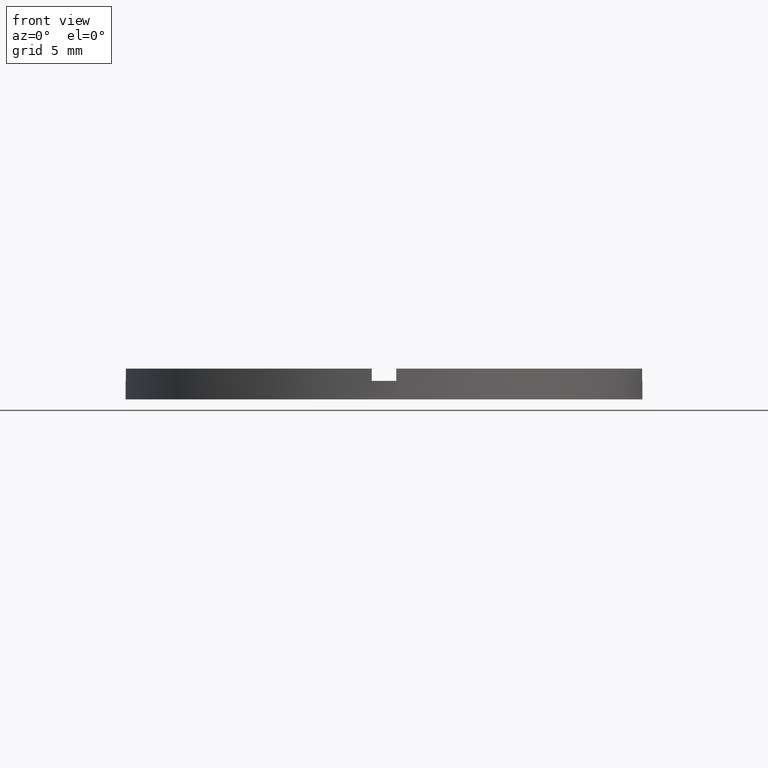
[diagram: clean part render]
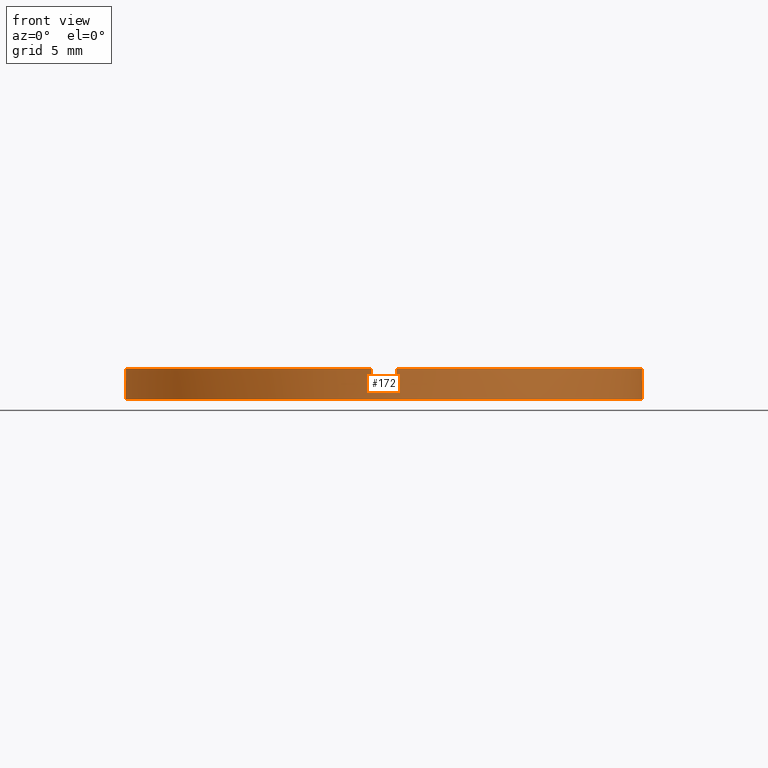
[diagram: same view with one face highlighted and labeled with its STEP entity id]
A machine part, front view. The second image highlights one B-rep face of the part: STEP entity #172.
In plain terms, the highlighted cylindrical surface (partial cylindrical patch) has radius 21 mm, axis along (-0, -0, -1).
Its self-contained STEP definition (entity closure, byte-faithful):
#8 = CARTESIAN_POINT ( 'NONE',  ( 0.000000000000000000, 0.000000000000000000, 2.500000000000000000 ) ) ;
#15 = VERTEX_POINT ( 'NONE', #753 ) ;
#19 = VERTEX_POINT ( 'NONE', #142 ) ;
#28 = CARTESIAN_POINT ( 'NONE',  ( -20.97617696340303084, -1.000000000000024647, 2.500000000000000000 ) ) ;
#50 = CARTESIAN_POINT ( 'NONE',  ( -1.000000000000161204, -20.97617696340302018, 2.500000000000000000 ) ) ;
#51 = ORIENTED_EDGE ( 'NONE', *, *, #196, .F. ) ;
#54 = DIRECTION ( 'NONE',  ( 1.000000000000000000, 0.000000000000000000, 0.000000000000000000 ) ) ;
#55 = CARTESIAN_POINT ( 'NONE',  ( 0.9999999999998380185, -20.97617696340303794, 1.500000000000000000 ) ) ;
#58 = ORIENTED_EDGE ( 'NONE', *, *, #186, .T. ) ;
#59 = CARTESIAN_POINT ( 'NONE',  ( 0.000000000000000000, 0.000000000000000000, 1.500000000000000000 ) ) ;
#67 = DIRECTION ( 'NONE',  ( -0.000000000000000000, -0.000000000000000000, -1.000000000000000000 ) ) ;
#98 = VECTOR ( 'NONE', #445, 1000.000000000000000 ) ;
#99 = CYLINDRICAL_SURFACE ( 'NONE', #316, 21.00000000000000000 ) ;
#102 = DIRECTION ( 'NONE',  ( -0.000000000000000000, -0.000000000000000000, -1.000000000000000000 ) ) ;
#108 = EDGE_CURVE ( 'NONE', #571, #250, #629, .T. ) ;
#109 = CARTESIAN_POINT ( 'NONE',  ( -21.00000000000000000, 0.000000000000000000, 1.500000000000000000 ) ) ;
#111 = FACE_OUTER_BOUND ( 'NONE', #278, .T. ) ;
#112 = DIRECTION ( 'NONE',  ( 1.000000000000000000, 0.000000000000000000, 0.000000000000000000 ) ) ;
#118 = CIRCLE ( 'NONE', #264, 21.00000000000000000 ) ;
#133 = CARTESIAN_POINT ( 'NONE',  ( 0.000000000000000000, 0.000000000000000000, 2.500000000000000000 ) ) ;
#138 = CARTESIAN_POINT ( 'NONE',  ( 20.97617696340302373, -1.000000000000158318, 2.500000000000000000 ) ) ;
#139 = EDGE_CURVE ( 'NONE', #19, #15, #374, .T. ) ;
#142 = CARTESIAN_POINT ( 'NONE',  ( 21.00000000000000000, 2.571758278209441661E-15, 1.500000000000000000 ) ) ;
#144 = LINE ( 'NONE', #248, #689 ) ;
#153 = VECTOR ( 'NONE', #718, 1000.000000000000000 ) ;
#155 = EDGE_CURVE ( 'NONE', #748, #515, #118, .T. ) ;
#168 = EDGE_CURVE ( 'NONE', #319, #15, #632, .T. ) ;
#172 = ADVANCED_FACE ( 'NONE', ( #111 ), #99, .T. ) ;
#174 = CIRCLE ( 'NONE', #579, 21.00000000000000000 ) ;
#180 = CARTESIAN_POINT ( 'NONE',  ( 0.000000000000000000, 0.000000000000000000, 1.500000000000000000 ) ) ;
#186 = EDGE_CURVE ( 'NONE', #748, #294, #386, .T. ) ;
#188 = VECTOR ( 'NONE', #763, 1000.000000000000000 ) ;
#196 = EDGE_CURVE ( 'NONE', #728, #19, #644, .T. ) ;
#223 = CARTESIAN_POINT ( 'NONE',  ( -1.000000000000161204, -20.97617696340302018, 1.500000000000000000 ) ) ;
#224 = ORIENTED_EDGE ( 'NONE', *, *, #155, .F. ) ;
#230 = CARTESIAN_POINT ( 'NONE',  ( -21.00000000000000000, 0.000000000000000000, 0.000000000000000000 ) ) ;
#231 = ORIENTED_EDGE ( 'NONE', *, *, #139, .F. ) ;
#232 = DIRECTION ( 'NONE',  ( -0.000000000000000000, 0.000000000000000000, 1.000000000000000000 ) ) ;
#233 = CARTESIAN_POINT ( 'NONE',  ( 0.9999999999998384625, -20.97617696340304150, 2.500000000000000000 ) ) ;
#235 = CARTESIAN_POINT ( 'NONE',  ( -1.000000000000161648, -20.97617696340302373, 2.500000000000000000 ) ) ;
#248 = CARTESIAN_POINT ( 'NONE',  ( -21.00000000000000000, 0.000000000000000000, 2.500000000000000000 ) ) ;
#250 = VERTEX_POINT ( 'NONE', #724 ) ;
#252 = AXIS2_PLACEMENT_3D ( 'NONE', #180, #676, #617 ) ;
#255 = CARTESIAN_POINT ( 'NONE',  ( 21.00000000000000000, 2.571758278209441661E-15, 2.500000000000000000 ) ) ;
#260 = AXIS2_PLACEMENT_3D ( 'NONE', #283, #402, #474 ) ;
#264 = AXIS2_PLACEMENT_3D ( 'NONE', #533, #232, #54 ) ;
#278 = EDGE_LOOP ( 'NONE', ( #231, #51, #504, #733, #297, #224, #58, #755, #554, #555, #745, #462 ) ) ;
#283 = CARTESIAN_POINT ( 'NONE',  ( 0.000000000000000000, 0.000000000000000000, 0.000000000000000000 ) ) ;
#294 = VERTEX_POINT ( 'NONE', #50 ) ;
#297 = ORIENTED_EDGE ( 'NONE', *, *, #677, .T. ) ;
#316 = AXIS2_PLACEMENT_3D ( 'NONE', #528, #602, #663 ) ;
#319 = VERTEX_POINT ( 'NONE', #230 ) ;
#326 = VERTEX_POINT ( 'NONE', #400 ) ;
#365 = VECTOR ( 'NONE', #399, 1000.000000000000000 ) ;
#374 = LINE ( 'NONE', #255, #98 ) ;
#386 = LINE ( 'NONE', #235, #365 ) ;
#394 = EDGE_CURVE ( 'NONE', #728, #250, #703, .T. ) ;
#399 = DIRECTION ( 'NONE',  ( 0.000000000000000000, 0.000000000000000000, 1.000000000000000000 ) ) ;
#400 = CARTESIAN_POINT ( 'NONE',  ( -20.97617696340303084, -1.000000000000024647, 2.500000000000000000 ) ) ;
#402 = DIRECTION ( 'NONE',  ( 0.000000000000000000, 0.000000000000000000, 1.000000000000000000 ) ) ;
#409 = CARTESIAN_POINT ( 'NONE',  ( -20.97617696340303084, -1.000000000000024647, 1.500000000000000000 ) ) ;
#418 = DIRECTION ( 'NONE',  ( 0.000000000000000000, 0.000000000000000000, 1.000000000000000000 ) ) ;
#426 = CIRCLE ( 'NONE', #252, 21.00000000000000000 ) ;
#441 = LINE ( 'NONE', #233, #153 ) ;
#445 = DIRECTION ( 'NONE',  ( -0.000000000000000000, -0.000000000000000000, -1.000000000000000000 ) ) ;
#447 = AXIS2_PLACEMENT_3D ( 'NONE', #59, #471, #112 ) ;
#454 = CARTESIAN_POINT ( 'NONE',  ( 20.97617696340302373, -1.000000000000158318, 1.500000000000000000 ) ) ;
#458 = VERTEX_POINT ( 'NONE', #109 ) ;
#462 = ORIENTED_EDGE ( 'NONE', *, *, #168, .T. ) ;
#471 = DIRECTION ( 'NONE',  ( 0.000000000000000000, 0.000000000000000000, 1.000000000000000000 ) ) ;
#474 = DIRECTION ( 'NONE',  ( 1.000000000000000000, 0.000000000000000000, 0.000000000000000000 ) ) ;
#504 = ORIENTED_EDGE ( 'NONE', *, *, #394, .T. ) ;
#515 = VERTEX_POINT ( 'NONE', #55 ) ;
#528 = CARTESIAN_POINT ( 'NONE',  ( 0.000000000000000000, 0.000000000000000000, 2.500000000000000000 ) ) ;
#533 = CARTESIAN_POINT ( 'NONE',  ( 0.000000000000000000, 0.000000000000000000, 1.500000000000000000 ) ) ;
#550 = VECTOR ( 'NONE', #102, 1000.000000000000000 ) ;
#553 = LINE ( 'NONE', #28, #550 ) ;
#554 = ORIENTED_EDGE ( 'NONE', *, *, #776, .T. ) ;
#555 = ORIENTED_EDGE ( 'NONE', *, *, #576, .F. ) ;
#558 = VERTEX_POINT ( 'NONE', #409 ) ;
#571 = VERTEX_POINT ( 'NONE', #679 ) ;
#576 = EDGE_CURVE ( 'NONE', #458, #558, #426, .T. ) ;
#579 = AXIS2_PLACEMENT_3D ( 'NONE', #8, #418, #727 ) ;
#598 = EDGE_CURVE ( 'NONE', #326, #294, #174, .T. ) ;
#602 = DIRECTION ( 'NONE',  ( -0.000000000000000000, -0.000000000000000000, -1.000000000000000000 ) ) ;
#606 = EDGE_CURVE ( 'NONE', #458, #319, #144, .T. ) ;
#617 = DIRECTION ( 'NONE',  ( 1.000000000000000000, 0.000000000000000000, 0.000000000000000000 ) ) ;
#622 = AXIS2_PLACEMENT_3D ( 'NONE', #133, #765, #683 ) ;
#629 = CIRCLE ( 'NONE', #622, 21.00000000000000000 ) ;
#632 = CIRCLE ( 'NONE', #260, 21.00000000000000000 ) ;
#644 = CIRCLE ( 'NONE', #447, 21.00000000000000000 ) ;
#663 = DIRECTION ( 'NONE',  ( -1.000000000000000000, 0.000000000000000000, 0.000000000000000000 ) ) ;
#676 = DIRECTION ( 'NONE',  ( 0.000000000000000000, 0.000000000000000000, 1.000000000000000000 ) ) ;
#677 = EDGE_CURVE ( 'NONE', #571, #515, #441, .T. ) ;
#679 = CARTESIAN_POINT ( 'NONE',  ( 0.9999999999998380185, -20.97617696340303794, 2.500000000000000000 ) ) ;
#683 = DIRECTION ( 'NONE',  ( 1.000000000000000000, 0.000000000000000000, 0.000000000000000000 ) ) ;
#689 = VECTOR ( 'NONE', #67, 1000.000000000000000 ) ;
#703 = LINE ( 'NONE', #138, #188 ) ;
#718 = DIRECTION ( 'NONE',  ( -0.000000000000000000, -0.000000000000000000, -1.000000000000000000 ) ) ;
#724 = CARTESIAN_POINT ( 'NONE',  ( 20.97617696340302373, -1.000000000000158318, 2.500000000000000000 ) ) ;
#727 = DIRECTION ( 'NONE',  ( 1.000000000000000000, 0.000000000000000000, 0.000000000000000000 ) ) ;
#728 = VERTEX_POINT ( 'NONE', #454 ) ;
#733 = ORIENTED_EDGE ( 'NONE', *, *, #108, .F. ) ;
#745 = ORIENTED_EDGE ( 'NONE', *, *, #606, .T. ) ;
#748 = VERTEX_POINT ( 'NONE', #223 ) ;
#753 = CARTESIAN_POINT ( 'NONE',  ( 21.00000000000000000, 2.571758278209441661E-15, 0.000000000000000000 ) ) ;
#755 = ORIENTED_EDGE ( 'NONE', *, *, #598, .F. ) ;
#763 = DIRECTION ( 'NONE',  ( 0.000000000000000000, 0.000000000000000000, 1.000000000000000000 ) ) ;
#765 = DIRECTION ( 'NONE',  ( 0.000000000000000000, 0.000000000000000000, 1.000000000000000000 ) ) ;
#776 = EDGE_CURVE ( 'NONE', #326, #558, #553, .T. ) ;